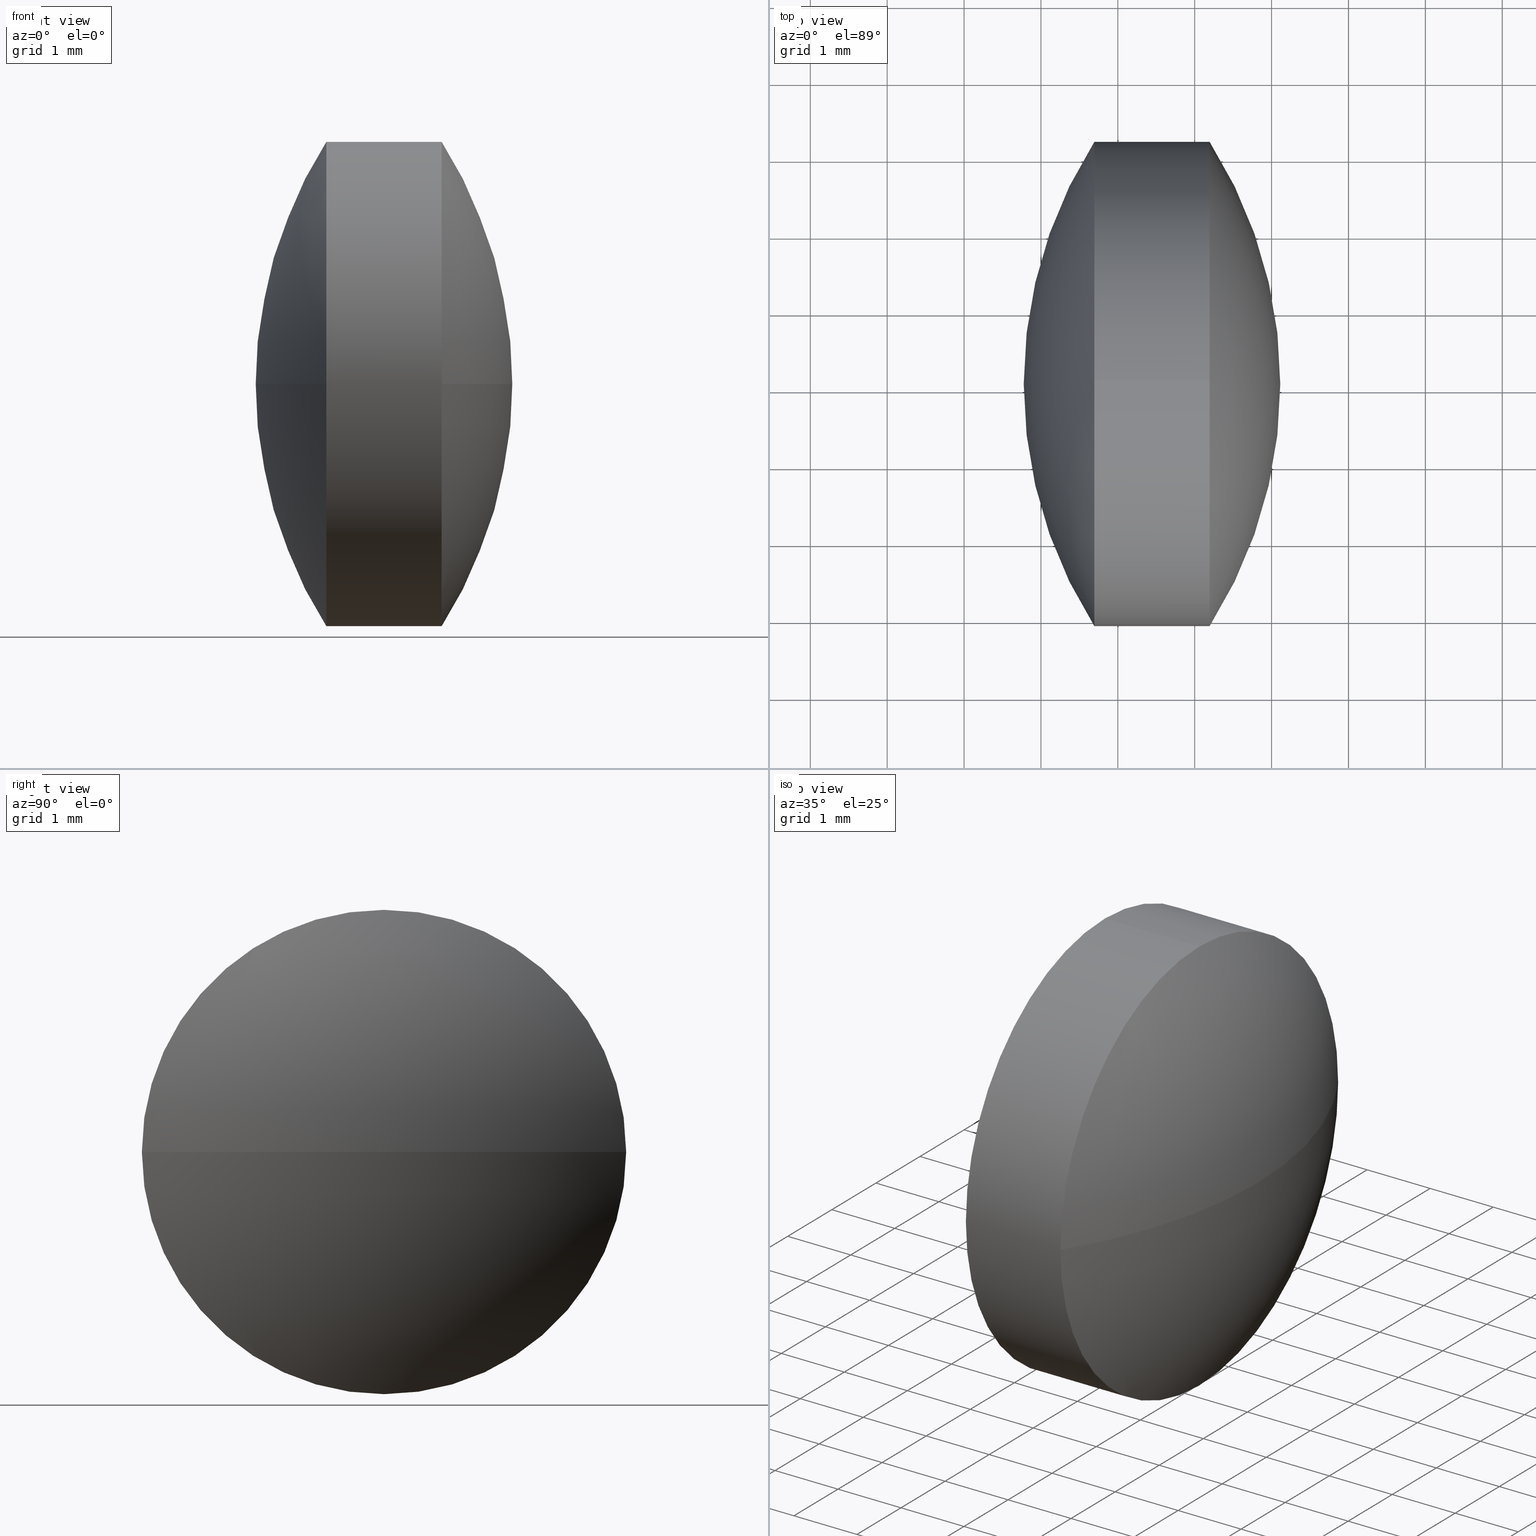
[diagram: canonical four-view strip — front | top / right | iso, engineering-drawing reading convention]
A machine part, canonical four-view strip (front | top / right | iso — engineering-drawing reading convention). The complete STEP part file that produces these views, byte-faithful:
ISO-10303-21;
HEADER;
FILE_DESCRIPTION (( 'STEP AP203' ),
    '1' );
FILE_NAME ('110006.STEP',
    '2019-06-24T08:49:02',
    ( '' ),
    ( '' ),
    'SwSTEP 2.0',
    'SolidWorks 2016',
    '' );
FILE_SCHEMA (( 'CONFIG_CONTROL_DESIGN' ));
ENDSEC;

DATA;
#1 = PERSON_AND_ORGANIZATION_ROLE ( 'design_supplier' ) ;
#2 = APPLICATION_CONTEXT ( 'configuration controlled 3d designs of mechanical parts and assemblies' ) ;
#3 = EDGE_CURVE ( 'NONE', #273, #116, #97, .T. ) ;
#4 = CALENDAR_DATE ( 2019, 24, 6 ) ;
#5 = LINE ( 'NONE', #196, #64 ) ;
#6 = ORIENTED_EDGE ( 'NONE', *, *, #75, .T. ) ;
#7 = AXIS2_PLACEMENT_3D ( 'NONE', #19, #306, #342 ) ;
#8 = FACE_OUTER_BOUND ( 'NONE', #76, .T. ) ;
#9 = DIRECTION ( 'NONE',  ( 0.0000000000000000000, 1.000000000000000000, 0.0000000000000000000 ) ) ;
#10 = DIRECTION ( 'NONE',  ( 0.0000000000000000000, 1.000000000000000000, 0.0000000000000000000 ) ) ;
#11 = APPROVAL_PERSON_ORGANIZATION ( #22, #241, #321 ) ;
#12 = PERSON_AND_ORGANIZATION ( #54, #151 ) ;
#13 = ORIENTED_EDGE ( 'NONE', *, *, #186, .T. ) ;
#14 = AXIS2_PLACEMENT_3D ( 'NONE', #307, #120, #228 ) ;
#15 = CARTESIAN_POINT ( 'NONE',  ( 25.63531401395296800, 12.05837547940992500, 0.0000000000000000000 ) ) ;
#16 = CARTESIAN_POINT ( 'NONE',  ( 20.69444092659728800, 12.05837547940993200, 3.150012600050391900 ) ) ;
#17 = FACE_OUTER_BOUND ( 'NONE', #209, .T. ) ;
#18 = CARTESIAN_POINT ( 'NONE',  ( 22.19444092659728800, 12.05837547940993200, 0.0000000000000000000 ) ) ;
#19 = CARTESIAN_POINT ( 'NONE',  ( 20.69444092659728800, 12.05837547940993200, 0.0000000000000000000 ) ) ;
#20 = AXIS2_PLACEMENT_3D ( 'NONE', #143, #70, #297 ) ;
#21 = DIRECTION ( 'NONE',  ( 1.000000000000000000, 0.0000000000000000000, 0.0000000000000000000 ) ) ;
#22 = PERSON_AND_ORGANIZATION ( #54, #151 ) ;
#23 = EDGE_LOOP ( 'NONE', ( #282, #13, #324, #58, #217, #345 ) ) ;
#24 = AXIS2_PLACEMENT_3D ( 'NONE', #332, #112, #94 ) ;
#25 =( LENGTH_UNIT ( ) NAMED_UNIT ( * ) SI_UNIT ( .MILLI., .METRE. ) );
#26 = APPROVAL_ROLE ( '' ) ;
#27 = CALENDAR_DATE ( 2019, 24, 6 ) ;
#28 = CIRCLE ( 'NONE', #117, 3.150012600050391900 ) ;
#29 = APPROVAL_STATUS ( 'not_yet_approved' ) ;
#30 = PERSON_AND_ORGANIZATION_ROLE ( 'design_owner' ) ;
#31 = PERSON_AND_ORGANIZATION ( #54, #151 ) ;
#32 = SHAPE_DEFINITION_REPRESENTATION ( #340, #148 ) ;
#33 = PRODUCT_DEFINITION_FORMATION_WITH_SPECIFIED_SOURCE ( '�κ�', '', #42, .NOT_KNOWN. ) ;
#34 = APPROVAL_STATUS ( 'not_yet_approved' ) ;
#35 = APPROVAL_ROLE ( '' ) ;
#36 = CC_DESIGN_PERSON_AND_ORGANIZATION_ASSIGNMENT ( #292, #30, ( #46 ) ) ;
#37 = LOCAL_TIME ( 16, 49, 2.000000000000000000, #263 ) ;
#38 = CIRCLE ( 'NONE', #20, 3.150012600050391900 ) ;
#39 = ORIENTED_EDGE ( 'NONE', *, *, #259, .T. ) ;
#40 = CALENDAR_DATE ( 2019, 24, 6 ) ;
#41 = CARTESIAN_POINT ( 'NONE',  ( 18.26476809820352200, 12.05837547940993200, -3.150012600050391900 ) ) ;
#42 = PRODUCT ( '110006', '110006', '', ( #315 ) ) ;
#43 = CLOSED_SHELL ( 'NONE', ( #55, #170, #150, #334, #141, #311 ) ) ;
#44 = DIRECTION ( 'NONE',  ( -0.0000000000000000000, 0.0000000000000000000, -1.000000000000000000 ) ) ;
#45 = EDGE_CURVE ( 'NONE', #178, #152, #38, .T. ) ;
#46 = PRODUCT ( '110006', '110006', '', ( #319 ) ) ;
#47 = LOCAL_TIME ( 16, 49, 2.000000000000000000, #206 ) ;
#48 = VERTEX_POINT ( 'NONE', #300 ) ;
#49 = ORIENTED_EDGE ( 'NONE', *, *, #203, .F. ) ;
#50 = DIRECTION ( 'NONE',  ( -1.000000000000000000, -0.0000000000000000000, -0.0000000000000000000 ) ) ;
#51 = CARTESIAN_POINT ( 'NONE',  ( 25.63531401395296800, 12.05837547940992500, 0.0000000000000000000 ) ) ;
#52 = CARTESIAN_POINT ( 'NONE',  ( 17.25356783924154800, 12.05837547940992500, 0.0000000000000000000 ) ) ;
#53 = CARTESIAN_POINT ( 'NONE',  ( 20.69444092659728800, 12.05837547940993200, -3.150012600050391900 ) ) ;
#54 = PERSON ( 'δָ��', 'δָ��', 'δָ��', ('δָ��'), ('δָ��'), ('δָ��') ) ;
#55 = ADVANCED_FACE ( 'NONE', ( #294 ), #225, .T. ) ;
#56 = DIRECTION ( 'NONE',  ( 0.0000000000000000000, 1.224646799147353200E-016, -1.000000000000000000 ) ) ;
#57 = DATE_AND_TIME ( #40, #133 ) ;
#58 = ORIENTED_EDGE ( 'NONE', *, *, #3, .F. ) ;
#59 = PRODUCT_RELATED_PRODUCT_CATEGORY ( 'detail', '', ( #42 ) ) ;
#60 = APPROVAL_ROLE ( '' ) ;
#61 = AXIS2_PLACEMENT_3D ( 'NONE', #147, #175, #73 ) ;
#62 = DATE_AND_TIME ( #69, #296 ) ;
#63 = PERSON_AND_ORGANIZATION_ROLE ( 'classification_officer' ) ;
#64 = VECTOR ( 'NONE', #171, 1000.000000000000000 ) ;
#65 = VERTEX_POINT ( 'NONE', #68 ) ;
#66 = EDGE_CURVE ( 'NONE', #178, #273, #5, .T. ) ;
#67 = CYLINDRICAL_SURFACE ( 'NONE', #14, 3.150012600050391900 ) ;
#68 = CARTESIAN_POINT ( 'NONE',  ( 20.69444092659728800, 8.908362879359534900, -3.857652847925542500E-016 ) ) ;
#69 = CALENDAR_DATE ( 2019, 24, 6 ) ;
#70 = DIRECTION ( 'NONE',  ( -1.000000000000000000, -0.0000000000000000000, -0.0000000000000000000 ) ) ;
#71 = DIRECTION ( 'NONE',  ( -0.0000000000000000000, 0.0000000000000000000, -1.000000000000000000 ) ) ;
#72 = CC_DESIGN_PERSON_AND_ORGANIZATION_ASSIGNMENT ( #214, #262, ( #248 ) ) ;
#73 = DIRECTION ( 'NONE',  ( 1.000000000000000000, 0.0000000000000000000, 0.0000000000000000000 ) ) ;
#74 = LOCAL_TIME ( 16, 49, 2.000000000000000000, #220 ) ;
#75 = EDGE_CURVE ( 'NONE', #65, #273, #304, .T. ) ;
#76 = EDGE_LOOP ( 'NONE', ( #168, #230, #49, #331 ) ) ;
#77 = ORIENTED_EDGE ( 'NONE', *, *, #317, .F. ) ;
#78 = DIRECTION ( 'NONE',  ( -1.000000000000000000, -0.0000000000000000000, -0.0000000000000000000 ) ) ;
#79 = AXIS2_PLACEMENT_3D ( 'NONE', #226, #99, #339 ) ;
#80 = DATE_TIME_ROLE ( 'creation_date' ) ;
#81 = DESIGN_CONTEXT ( 'detailed design', #184, 'design' ) ;
#82 = PERSON_AND_ORGANIZATION_ROLE ( 'design_supplier' ) ;
#83 = PERSON_AND_ORGANIZATION ( #54, #151 ) ;
#84 = EDGE_LOOP ( 'NONE', ( #139, #183, #91, #106 ) ) ;
#85 = APPROVAL_ROLE ( '' ) ;
#86 = APPROVAL_STATUS ( 'not_yet_approved' ) ;
#87 = CC_DESIGN_PERSON_AND_ORGANIZATION_ASSIGNMENT ( #12, #128, ( #42 ) ) ;
#88 = CIRCLE ( 'NONE', #7, 3.150012600050391900 ) ;
#89 = CARTESIAN_POINT ( 'NONE',  ( 20.69444092659728800, 12.05837547940993200, 0.0000000000000000000 ) ) ;
#90 = COORDINATED_UNIVERSAL_TIME_OFFSET ( 8, 0, .AHEAD. ) ;
#91 = ORIENTED_EDGE ( 'NONE', *, *, #45, .F. ) ;
#92 = AXIS2_PLACEMENT_3D ( 'NONE', #51, #98, #250 ) ;
#93 = CC_DESIGN_APPROVAL ( #162, ( #251 ) ) ;
#94 = DIRECTION ( 'NONE',  ( 0.0000000000000000000, 0.0000000000000000000, 1.000000000000000000 ) ) ;
#95 = PERSON_AND_ORGANIZATION ( #54, #151 ) ;
#96 = DIRECTION ( 'NONE',  ( -1.000000000000000000, -0.0000000000000000000, -0.0000000000000000000 ) ) ;
#97 = CIRCLE ( 'NONE', #219, 3.150012600050391900 ) ;
#98 = DIRECTION ( 'NONE',  ( 0.0000000000000000000, 1.224646799147353200E-016, -1.000000000000000000 ) ) ;
#99 = DIRECTION ( 'NONE',  ( -1.000000000000000000, -0.0000000000000000000, -0.0000000000000000000 ) ) ;
#100 = CALENDAR_DATE ( 2019, 24, 6 ) ;
#101 = CC_DESIGN_APPROVAL ( #274, ( #33 ) ) ;
#102 = DIRECTION ( 'NONE',  ( 0.0000000000000000000, 0.0000000000000000000, 1.000000000000000000 ) ) ;
#103 = AXIS2_PLACEMENT_3D ( 'NONE', #275, #50, #270 ) ;
#104 = ORIENTED_EDGE ( 'NONE', *, *, #288, .F. ) ;
#105 = PERSON_AND_ORGANIZATION ( #54, #151 ) ;
#106 = ORIENTED_EDGE ( 'NONE', *, *, #259, .F. ) ;
#107 = AXIS2_PLACEMENT_3D ( 'NONE', #18, #119, #174 ) ;
#108 = APPROVAL_DATE_TIME ( #62, #241 ) ;
#109 = PRODUCT_RELATED_PRODUCT_CATEGORY ( 'detail', '', ( #46 ) ) ;
#110 = FACE_OUTER_BOUND ( 'NONE', #182, .T. ) ;
#111 = APPROVAL_PERSON_ORGANIZATION ( #176, #255, #266 ) ;
#112 = DIRECTION ( 'NONE',  ( -1.000000000000000000, -0.0000000000000000000, -0.0000000000000000000 ) ) ;
#113 = APPROVAL ( #158, 'δָ��' ) ;
#114 = PERSON_AND_ORGANIZATION ( #54, #151 ) ;
#115 = APPROVAL_DATE_TIME ( #264, #162 ) ;
#116 = VERTEX_POINT ( 'NONE', #166 ) ;
#117 = AXIS2_PLACEMENT_3D ( 'NONE', #338, #336, #310 ) ;
#118 = DIRECTION ( 'NONE',  ( -0.0000000000000000000, 0.0000000000000000000, 1.000000000000000000 ) ) ;
#119 = DIRECTION ( 'NONE',  ( -1.000000000000000000, -0.0000000000000000000, -0.0000000000000000000 ) ) ;
#120 = DIRECTION ( 'NONE',  ( -1.000000000000000000, -0.0000000000000000000, -0.0000000000000000000 ) ) ;
#121 = DIRECTION ( 'NONE',  ( 0.0000000000000000000, 1.000000000000000000, 1.224646799147353000E-016 ) ) ;
#122 = DIRECTION ( 'NONE',  ( 0.0000000000000000000, 1.000000000000000000, 0.0000000000000000000 ) ) ;
#123 = AXIS2_PLACEMENT_3D ( 'NONE', #254, #118, #21 ) ;
#124 = APPROVAL_DATE_TIME ( #159, #113 ) ;
#125 = CARTESIAN_POINT ( 'NONE',  ( 0.0000000000000000000, 0.0000000000000000000, 0.0000000000000000000 ) ) ;
#126 = EDGE_LOOP ( 'NONE', ( #200, #309, #316, #77 ) ) ;
#127 = CC_DESIGN_PERSON_AND_ORGANIZATION_ASSIGNMENT ( #83, #215, ( #312 ) ) ;
#128 = PERSON_AND_ORGANIZATION_ROLE ( 'design_owner' ) ;
#129 = AXIS2_PLACEMENT_3D ( 'NONE', #279, #71, #122 ) ;
#130 = PERSON_AND_ORGANIZATION_ROLE ( 'creator' ) ;
#131 = DATE_TIME_ROLE ( 'classification_date' ) ;
#132 = CC_DESIGN_PERSON_AND_ORGANIZATION_ASSIGNMENT ( #105, #82, ( #33 ) ) ;
#133 = LOCAL_TIME ( 16, 49, 2.000000000000000000, #271 ) ;
#134 = CIRCLE ( 'NONE', #140, 3.150012600050391900 ) ;
#135 = DIRECTION ( 'NONE',  ( -0.0000000000000000000, 0.0000000000000000000, -1.000000000000000000 ) ) ;
#136 = COORDINATED_UNIVERSAL_TIME_OFFSET ( 8, 0, .AHEAD. ) ;
#137 = CARTESIAN_POINT ( 'NONE',  ( 22.19444092659728800, 8.908362879359536600, -3.857652847925541000E-016 ) ) ;
#138 = APPROVAL_PERSON_ORGANIZATION ( #281, #162, #26 ) ;
#139 = ORIENTED_EDGE ( 'NONE', *, *, #232, .F. ) ;
#140 = AXIS2_PLACEMENT_3D ( 'NONE', #185, #78, #102 ) ;
#141 = ADVANCED_FACE ( 'NONE', ( #145 ), #235, .T. ) ;
#142 = SECURITY_CLASSIFICATION ( '', '', #293 ) ;
#143 = CARTESIAN_POINT ( 'NONE',  ( 22.19444092659728800, 12.05837547940993200, 0.0000000000000000000 ) ) ;
#144 = CARTESIAN_POINT ( 'NONE',  ( 19.77572305162190200, 12.05837547940992500, 0.0000000000000000000 ) ) ;
#145 = FACE_OUTER_BOUND ( 'NONE', #84, .T. ) ;
#146 =( GEOMETRIC_REPRESENTATION_CONTEXT ( 3 ) GLOBAL_UNCERTAINTY_ASSIGNED_CONTEXT ( ( #224 ) ) GLOBAL_UNIT_ASSIGNED_CONTEXT ( ( #25, #231, #213 ) ) REPRESENTATION_CONTEXT ( 'NONE', 'WORKASPACE' ) );
#147 = CARTESIAN_POINT ( 'NONE',  ( 17.25356783924154800, 12.05837547940992500, 0.0000000000000000000 ) ) ;
#148 = ADVANCED_BREP_SHAPE_REPRESENTATION ( '110006', ( #253, #283 ), #146 ) ;
#149 = LOCAL_TIME ( 16, 49, 2.000000000000000000, #289 ) ;
#150 = ADVANCED_FACE ( 'NONE', ( #257 ), #216, .T. ) ;
#151 = ORGANIZATION ( 'δָ��', 'δָ��', '' ) ;
#152 = VERTEX_POINT ( 'NONE', #197 ) ;
#153 = DIRECTION ( 'NONE',  ( 0.0000000000000000000, 0.0000000000000000000, 1.000000000000000000 ) ) ;
#154 = CARTESIAN_POINT ( 'NONE',  ( 0.0000000000000000000, 0.0000000000000000000, 0.0000000000000000000 ) ) ;
#155 = APPLICATION_PROTOCOL_DEFINITION ( 'international standard', 'config_control_design', 1994, #184 ) ;
#156 = VECTOR ( 'NONE', #96, 1000.000000000000000 ) ;
#157 = CC_DESIGN_DATE_AND_TIME_ASSIGNMENT ( #57, #191, ( #142 ) ) ;
#158 = APPROVAL_STATUS ( 'not_yet_approved' ) ;
#159 = DATE_AND_TIME ( #198, #280 ) ;
#160 = SECURITY_CLASSIFICATION_LEVEL ( 'unclassified' ) ;
#161 = PERSON_AND_ORGANIZATION_ROLE ( 'classification_officer' ) ;
#162 = APPROVAL ( #29, 'δָ��' ) ;
#163 = LOCAL_TIME ( 16, 49, 2.000000000000000000, #329 ) ;
#164 = LINE ( 'NONE', #41, #156 ) ;
#165 = AXIS2_PLACEMENT_3D ( 'NONE', #125, #286, #318 ) ;
#166 = CARTESIAN_POINT ( 'NONE',  ( 20.69444092659728800, 15.20838807946032200, 0.0000000000000000000 ) ) ;
#167 = DATE_AND_TIME ( #100, #37 ) ;
#168 = ORIENTED_EDGE ( 'NONE', *, *, #269, .F. ) ;
#169 = CC_DESIGN_PERSON_AND_ORGANIZATION_ASSIGNMENT ( #246, #211, ( #251 ) ) ;
#170 = ADVANCED_FACE ( 'NONE', ( #8 ), #314, .T. ) ;
#171 = DIRECTION ( 'NONE',  ( -1.000000000000000000, -0.0000000000000000000, -0.0000000000000000000 ) ) ;
#172 = VERTEX_POINT ( 'NONE', #137 ) ;
#173 = ORIENTED_EDGE ( 'NONE', *, *, #75, .F. ) ;
#174 = DIRECTION ( 'NONE',  ( 0.0000000000000000000, 0.0000000000000000000, 1.000000000000000000 ) ) ;
#175 = DIRECTION ( 'NONE',  ( -0.0000000000000000000, 0.0000000000000000000, 1.000000000000000000 ) ) ;
#176 = PERSON_AND_ORGANIZATION ( #54, #151 ) ;
#177 = DIRECTION ( 'NONE',  ( -0.0000000000000000000, 0.0000000000000000000, -1.000000000000000000 ) ) ;
#178 = VERTEX_POINT ( 'NONE', #201 ) ;
#179 = AXIS2_PLACEMENT_3D ( 'NONE', #333, #177, #249 ) ;
#180 = DIRECTION ( 'NONE',  ( 1.000000000000000000, 0.0000000000000000000, 0.0000000000000000000 ) ) ;
#181 = APPROVAL_DATE_TIME ( #245, #274 ) ;
#182 = EDGE_LOOP ( 'NONE', ( #243, #6, #193, #238 ) ) ;
#183 = ORIENTED_EDGE ( 'NONE', *, *, #269, .T. ) ;
#184 = APPLICATION_CONTEXT ( 'configuration controlled 3d designs of mechanical parts and assemblies' ) ;
#185 = CARTESIAN_POINT ( 'NONE',  ( 22.19444092659728800, 12.05837547940993200, 0.0000000000000000000 ) ) ;
#186 = EDGE_CURVE ( 'NONE', #48, #258, #164, .T. ) ;
#187 = APPROVAL_PERSON_ORGANIZATION ( #31, #274, #35 ) ;
#188 = APPLICATION_PROTOCOL_DEFINITION ( 'international standard', 'config_control_design', 1994, #2 ) ;
#189 = APPROVAL_STATUS ( 'not_yet_approved' ) ;
#190 = SECURITY_CLASSIFICATION ( '', '', #160 ) ;
#191 = DATE_TIME_ROLE ( 'classification_date' ) ;
#192 = DATE_AND_TIME ( #27, #163 ) ;
#193 = ORIENTED_EDGE ( 'NONE', *, *, #3, .T. ) ;
#194 = CC_DESIGN_PERSON_AND_ORGANIZATION_ASSIGNMENT ( #234, #63, ( #142 ) ) ;
#195 = DATE_AND_TIME ( #4, #149 ) ;
#196 = CARTESIAN_POINT ( 'NONE',  ( 18.26476809820352200, 12.05837547940993200, 3.150012600050391900 ) ) ;
#197 = CARTESIAN_POINT ( 'NONE',  ( 22.19444092659728800, 15.20838807946032000, 0.0000000000000000000 ) ) ;
#198 = CALENDAR_DATE ( 2019, 24, 6 ) ;
#199 = CIRCLE ( 'NONE', #107, 3.150012600050391900 ) ;
#200 = ORIENTED_EDGE ( 'NONE', *, *, #328, .T. ) ;
#201 = CARTESIAN_POINT ( 'NONE',  ( 22.19444092659728800, 12.05837547940993200, 3.150012600050391900 ) ) ;
#202 = CIRCLE ( 'NONE', #123, 5.859590962331063600 ) ;
#203 = EDGE_CURVE ( 'NONE', #48, #172, #28, .T. ) ;
#204 = PRODUCT_DEFINITION_SHAPE ( 'NONE', 'NONE',  #251 ) ;
#205 = CARTESIAN_POINT ( 'NONE',  ( 23.11315880157266300, 12.05837547940992500, 0.0000000000000000000 ) ) ;
#206 = COORDINATED_UNIVERSAL_TIME_OFFSET ( 8, 0, .AHEAD. ) ;
#207 = CC_DESIGN_APPROVAL ( #113, ( #312 ) ) ;
#208 = LOCAL_TIME ( 16, 49, 2.000000000000000000, #272 ) ;
#209 = EDGE_LOOP ( 'NONE', ( #247, #221, #39, #222, #173, #104 ) ) ;
#210 = APPLICATION_CONTEXT ( 'configuration controlled 3d designs of mechanical parts and assemblies' ) ;
#211 = PERSON_AND_ORGANIZATION_ROLE ( 'creator' ) ;
#212 = CC_DESIGN_PERSON_AND_ORGANIZATION_ASSIGNMENT ( #114, #1, ( #248 ) ) ;
#213 =( NAMED_UNIT ( * ) SI_UNIT ( $, .STERADIAN. ) SOLID_ANGLE_UNIT ( ) );
#214 = PERSON_AND_ORGANIZATION ( #54, #151 ) ;
#215 = PERSON_AND_ORGANIZATION_ROLE ( 'creator' ) ;
#216 = SPHERICAL_SURFACE ( 'NONE', #291, 5.859590962331065400 ) ;
#217 = ORIENTED_EDGE ( 'NONE', *, *, #66, .F. ) ;
#218 = CIRCLE ( 'NONE', #79, 3.150012600050391900 ) ;
#219 = AXIS2_PLACEMENT_3D ( 'NONE', #89, #244, #299 ) ;
#220 = COORDINATED_UNIVERSAL_TIME_OFFSET ( 8, 0, .AHEAD. ) ;
#221 = ORIENTED_EDGE ( 'NONE', *, *, #203, .T. ) ;
#222 = ORIENTED_EDGE ( 'NONE', *, *, #66, .T. ) ;
#223 = CC_DESIGN_DATE_AND_TIME_ASSIGNMENT ( #327, #236, ( #251 ) ) ;
#224 = UNCERTAINTY_MEASURE_WITH_UNIT (LENGTH_MEASURE( 1.000000000000000100E-005 ), #25, 'distance_accuracy_value', 'NONE');
#225 = CYLINDRICAL_SURFACE ( 'NONE', #24, 3.150012600050391900 ) ;
#226 = CARTESIAN_POINT ( 'NONE',  ( 20.69444092659728800, 12.05837547940993200, 0.0000000000000000000 ) ) ;
#227 = CC_DESIGN_PERSON_AND_ORGANIZATION_ASSIGNMENT ( #95, #161, ( #190 ) ) ;
#228 = DIRECTION ( 'NONE',  ( 0.0000000000000000000, 0.0000000000000000000, 1.000000000000000000 ) ) ;
#229 = PERSON_AND_ORGANIZATION ( #54, #151 ) ;
#230 = ORIENTED_EDGE ( 'NONE', *, *, #232, .T. ) ;
#231 =( NAMED_UNIT ( * ) PLANE_ANGLE_UNIT ( ) SI_UNIT ( $, .RADIAN. ) );
#232 = EDGE_CURVE ( 'NONE', #265, #172, #298, .T. ) ;
#233 = APPLICATION_PROTOCOL_DEFINITION ( 'international standard', 'config_control_design', 1994, #210 ) ;
#234 = PERSON_AND_ORGANIZATION ( #54, #151 ) ;
#235 = SPHERICAL_SURFACE ( 'NONE', #267, 5.859590962331113300 ) ;
#236 = DATE_TIME_ROLE ( 'creation_date' ) ;
#237 = LOCAL_TIME ( 16, 49, 2.000000000000000000, #343 ) ;
#238 = ORIENTED_EDGE ( 'NONE', *, *, #317, .T. ) ;
#239 = APPROVAL_STATUS ( 'not_yet_approved' ) ;
#240 = APPROVAL_DATE_TIME ( #313, #255 ) ;
#241 = APPROVAL ( #86, 'δָ��' ) ;
#242 = CALENDAR_DATE ( 2019, 24, 6 ) ;
#243 = ORIENTED_EDGE ( 'NONE', *, *, #276, .F. ) ;
#244 = DIRECTION ( 'NONE',  ( -1.000000000000000000, -0.0000000000000000000, -0.0000000000000000000 ) ) ;
#245 = DATE_AND_TIME ( #323, #74 ) ;
#246 = PERSON_AND_ORGANIZATION ( #54, #151 ) ;
#247 = ORIENTED_EDGE ( 'NONE', *, *, #186, .F. ) ;
#248 = PRODUCT_DEFINITION_FORMATION_WITH_SPECIFIED_SOURCE ( '�κ�', '', #46, .NOT_KNOWN. ) ;
#249 = DIRECTION ( 'NONE',  ( 0.0000000000000000000, 1.000000000000000000, 0.0000000000000000000 ) ) ;
#250 = DIRECTION ( 'NONE',  ( 0.0000000000000000000, 1.000000000000000000, 1.224646799147352700E-016 ) ) ;
#251 = PRODUCT_DEFINITION ( 'δ֪', '', #33, #81 ) ;
#252 = PERSON_AND_ORGANIZATION ( #54, #151 ) ;
#253 = MANIFOLD_SOLID_BREP ( '��ת1', #43 ) ;
#254 = CARTESIAN_POINT ( 'NONE',  ( 25.63531401395296800, 12.05837547940992500, 0.0000000000000000000 ) ) ;
#255 = APPROVAL ( #239, 'δָ��' ) ;
#256 = CALENDAR_DATE ( 2019, 24, 6 ) ;
#257 = FACE_OUTER_BOUND ( 'NONE', #126, .T. ) ;
#258 = VERTEX_POINT ( 'NONE', #53 ) ;
#259 = EDGE_CURVE ( 'NONE', #172, #178, #199, .T. ) ;
#260 = CC_DESIGN_APPROVAL ( #255, ( #142 ) ) ;
#261 = APPROVAL_PERSON_ORGANIZATION ( #229, #113, #85 ) ;
#262 = PERSON_AND_ORGANIZATION_ROLE ( 'creator' ) ;
#263 = COORDINATED_UNIVERSAL_TIME_OFFSET ( 8, 0, .AHEAD. ) ;
#264 = DATE_AND_TIME ( #344, #208 ) ;
#265 = VERTEX_POINT ( 'NONE', #205 ) ;
#266 = APPROVAL_ROLE ( '' ) ;
#267 = AXIS2_PLACEMENT_3D ( 'NONE', #295, #135, #10 ) ;
#268 = CIRCLE ( 'NONE', #92, 5.859590962331067100 ) ;
#269 = EDGE_CURVE ( 'NONE', #265, #152, #277, .T. ) ;
#270 = DIRECTION ( 'NONE',  ( 0.0000000000000000000, 0.0000000000000000000, 1.000000000000000000 ) ) ;
#271 = COORDINATED_UNIVERSAL_TIME_OFFSET ( 8, 0, .AHEAD. ) ;
#272 = COORDINATED_UNIVERSAL_TIME_OFFSET ( 8, 0, .AHEAD. ) ;
#273 = VERTEX_POINT ( 'NONE', #16 ) ;
#274 = APPROVAL ( #34, 'δָ��' ) ;
#275 = CARTESIAN_POINT ( 'NONE',  ( 20.69444092659728800, 12.05837547940993200, 0.0000000000000000000 ) ) ;
#276 = EDGE_CURVE ( 'NONE', #65, #320, #268, .T. ) ;
#277 = CIRCLE ( 'NONE', #61, 5.859590962331115100 ) ;
#278 = CC_DESIGN_APPROVAL ( #241, ( #190 ) ) ;
#279 = CARTESIAN_POINT ( 'NONE',  ( 25.63531401395296800, 12.05837547940992500, 0.0000000000000000000 ) ) ;
#280 = LOCAL_TIME ( 16, 49, 2.000000000000000000, #90 ) ;
#281 = PERSON_AND_ORGANIZATION ( #54, #151 ) ;
#282 = ORIENTED_EDGE ( 'NONE', *, *, #335, .T. ) ;
#283 = AXIS2_PLACEMENT_3D ( 'NONE', #154, #153, #180 ) ;
#284 = APPLICATION_CONTEXT ( 'configuration controlled 3d designs of mechanical parts and assemblies' ) ;
#285 = CC_DESIGN_SECURITY_CLASSIFICATION ( #190, ( #33 ) ) ;
#286 = DIRECTION ( 'NONE',  ( 0.0000000000000000000, 0.0000000000000000000, 1.000000000000000000 ) ) ;
#287 = SPHERICAL_SURFACE ( 'NONE', #129, 5.859590962331065400 ) ;
#288 = EDGE_CURVE ( 'NONE', #258, #65, #88, .T. ) ;
#289 = COORDINATED_UNIVERSAL_TIME_OFFSET ( 8, 0, .AHEAD. ) ;
#290 = APPLICATION_PROTOCOL_DEFINITION ( 'international standard', 'config_control_design', 1994, #284 ) ;
#291 = AXIS2_PLACEMENT_3D ( 'NONE', #15, #44, #9 ) ;
#292 = PERSON_AND_ORGANIZATION ( #54, #151 ) ;
#293 = SECURITY_CLASSIFICATION_LEVEL ( 'unclassified' ) ;
#294 = FACE_OUTER_BOUND ( 'NONE', #23, .T. ) ;
#295 = CARTESIAN_POINT ( 'NONE',  ( 17.25356783924154800, 12.05837547940992500, 0.0000000000000000000 ) ) ;
#296 = LOCAL_TIME ( 16, 49, 2.000000000000000000, #136 ) ;
#297 = DIRECTION ( 'NONE',  ( 0.0000000000000000000, 0.0000000000000000000, 1.000000000000000000 ) ) ;
#298 = CIRCLE ( 'NONE', #302, 5.859590962331115100 ) ;
#299 = DIRECTION ( 'NONE',  ( 0.0000000000000000000, 0.0000000000000000000, 1.000000000000000000 ) ) ;
#300 = CARTESIAN_POINT ( 'NONE',  ( 22.19444092659728800, 12.05837547940993200, -3.150012600050391900 ) ) ;
#301 = CC_DESIGN_PERSON_AND_ORGANIZATION_ASSIGNMENT ( #252, #130, ( #33 ) ) ;
#302 = AXIS2_PLACEMENT_3D ( 'NONE', #52, #56, #121 ) ;
#303 = APPROVAL_PERSON_ORGANIZATION ( #308, #341, #60 ) ;
#304 = CIRCLE ( 'NONE', #103, 3.150012600050391900 ) ;
#305 = CC_DESIGN_DATE_AND_TIME_ASSIGNMENT ( #167, #131, ( #190 ) ) ;
#306 = DIRECTION ( 'NONE',  ( -1.000000000000000000, -0.0000000000000000000, -0.0000000000000000000 ) ) ;
#307 = CARTESIAN_POINT ( 'NONE',  ( 18.26476809820352200, 12.05837547940993200, 0.0000000000000000000 ) ) ;
#308 = PERSON_AND_ORGANIZATION ( #54, #151 ) ;
#309 = ORIENTED_EDGE ( 'NONE', *, *, #288, .T. ) ;
#310 = DIRECTION ( 'NONE',  ( 0.0000000000000000000, 0.0000000000000000000, 1.000000000000000000 ) ) ;
#311 = ADVANCED_FACE ( 'NONE', ( #17 ), #67, .T. ) ;
#312 = PRODUCT_DEFINITION ( 'δ֪', '', #248, #326 ) ;
#313 = DATE_AND_TIME ( #242, #47 ) ;
#314 = SPHERICAL_SURFACE ( 'NONE', #179, 5.859590962331113300 ) ;
#315 = MECHANICAL_CONTEXT ( 'NONE', #210, 'mechanical' ) ;
#316 = ORIENTED_EDGE ( 'NONE', *, *, #276, .T. ) ;
#317 = EDGE_CURVE ( 'NONE', #116, #320, #202, .T. ) ;
#318 = DIRECTION ( 'NONE',  ( 1.000000000000000000, 0.0000000000000000000, 0.0000000000000000000 ) ) ;
#319 = MECHANICAL_CONTEXT ( 'NONE', #284, 'mechanical' ) ;
#320 = VERTEX_POINT ( 'NONE', #144 ) ;
#321 = APPROVAL_ROLE ( '' ) ;
#322 = CC_DESIGN_APPROVAL ( #341, ( #248 ) ) ;
#323 = CALENDAR_DATE ( 2019, 24, 6 ) ;
#324 = ORIENTED_EDGE ( 'NONE', *, *, #328, .F. ) ;
#325 = CC_DESIGN_DATE_AND_TIME_ASSIGNMENT ( #195, #80, ( #312 ) ) ;
#326 = DESIGN_CONTEXT ( 'detailed design', #2, 'design' ) ;
#327 = DATE_AND_TIME ( #256, #237 ) ;
#328 = EDGE_CURVE ( 'NONE', #116, #258, #218, .T. ) ;
#329 = COORDINATED_UNIVERSAL_TIME_OFFSET ( 8, 0, .AHEAD. ) ;
#330 = CC_DESIGN_SECURITY_CLASSIFICATION ( #142, ( #248 ) ) ;
#331 = ORIENTED_EDGE ( 'NONE', *, *, #335, .F. ) ;
#332 = CARTESIAN_POINT ( 'NONE',  ( 18.26476809820352200, 12.05837547940993200, 0.0000000000000000000 ) ) ;
#333 = CARTESIAN_POINT ( 'NONE',  ( 17.25356783924154800, 12.05837547940992500, 0.0000000000000000000 ) ) ;
#334 = ADVANCED_FACE ( 'NONE', ( #110 ), #287, .T. ) ;
#335 = EDGE_CURVE ( 'NONE', #152, #48, #134, .T. ) ;
#336 = DIRECTION ( 'NONE',  ( -1.000000000000000000, -0.0000000000000000000, -0.0000000000000000000 ) ) ;
#337 = APPROVAL_DATE_TIME ( #192, #341 ) ;
#338 = CARTESIAN_POINT ( 'NONE',  ( 22.19444092659728800, 12.05837547940993200, 0.0000000000000000000 ) ) ;
#339 = DIRECTION ( 'NONE',  ( 0.0000000000000000000, 0.0000000000000000000, 1.000000000000000000 ) ) ;
#340 = PRODUCT_DEFINITION_SHAPE ( 'NONE', 'NONE',  #312 ) ;
#341 = APPROVAL ( #189, 'δָ��' ) ;
#342 = DIRECTION ( 'NONE',  ( 0.0000000000000000000, 0.0000000000000000000, 1.000000000000000000 ) ) ;
#343 = COORDINATED_UNIVERSAL_TIME_OFFSET ( 8, 0, .AHEAD. ) ;
#344 = CALENDAR_DATE ( 2019, 24, 6 ) ;
#345 = ORIENTED_EDGE ( 'NONE', *, *, #45, .T. ) ;
ENDSEC;
END-ISO-10303-21;
